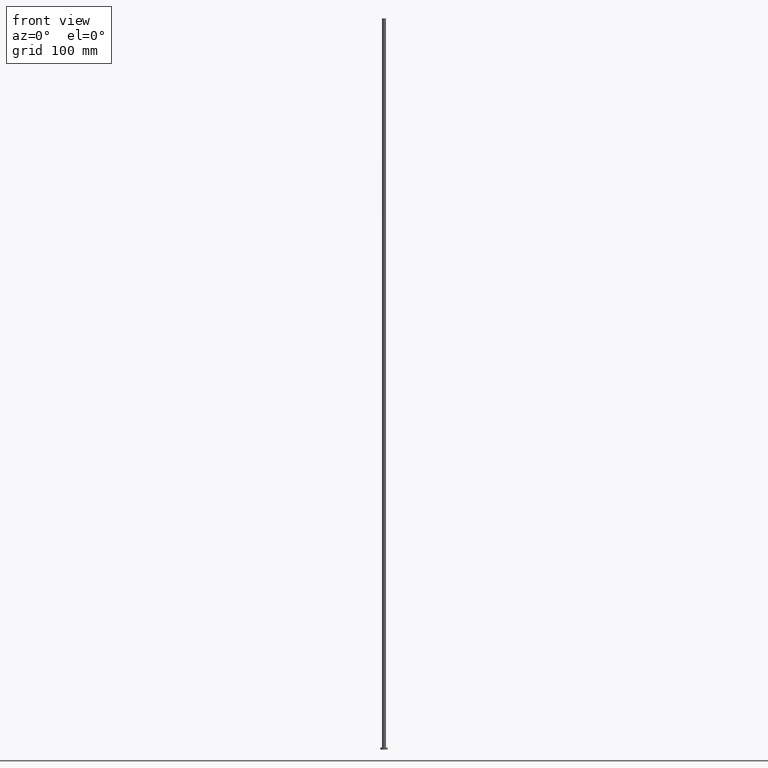
[diagram: clean part render]
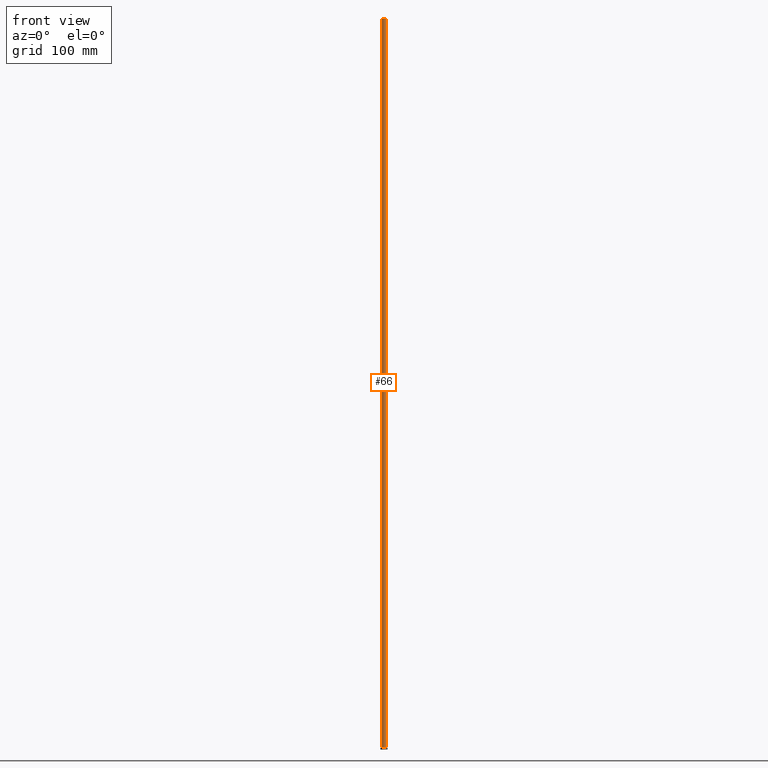
[diagram: same view with one face highlighted and labeled with its STEP entity id]
A machine part, front view. The second image highlights one B-rep face of the part: STEP entity #66.
In plain terms, the highlighted cylindrical surface (edge-blend (fillet) strip) has radius 2.75 mm, axis along (-0, -0, -1).
Its self-contained STEP definition (entity closure, byte-faithful):
#1 = ORIENTED_EDGE ( 'NONE', *, *, #4, .F. ) ;
#4 = EDGE_CURVE ( 'NONE', #95, #244, #157, .T. ) ;
#13 = AXIS2_PLACEMENT_3D ( 'NONE', #89, #241, #224 ) ;
#14 = CARTESIAN_POINT ( 'NONE',  ( -2.750000000000000000, 0.000000000000000000, 3.000000000000000000 ) ) ;
#15 = CARTESIAN_POINT ( 'NONE',  ( -2.750000000000000000, 0.000000000000000000, 1000.000000000000000 ) ) ;
#44 = AXIS2_PLACEMENT_3D ( 'NONE', #211, #130, #154 ) ;
#51 = EDGE_LOOP ( 'NONE', ( #1, #240, #134, #161 ) ) ;
#56 = VERTEX_POINT ( 'NONE', #15 ) ;
#58 = DIRECTION ( 'NONE',  ( -0.000000000000000000, -0.000000000000000000, -1.000000000000000000 ) ) ;
#66 = ADVANCED_FACE ( 'NONE', ( #121 ), #73, .T. ) ;
#73 = CYLINDRICAL_SURFACE ( 'NONE', #123, 2.750000000000000000 ) ;
#75 = DIRECTION ( 'NONE',  ( -0.000000000000000000, -0.000000000000000000, -1.000000000000000000 ) ) ;
#89 = CARTESIAN_POINT ( 'NONE',  ( 0.000000000000000000, 0.000000000000000000, 1000.000000000000000 ) ) ;
#92 = CARTESIAN_POINT ( 'NONE',  ( -2.750000000000000000, 0.000000000000000000, 1000.000000000000000 ) ) ;
#95 = VERTEX_POINT ( 'NONE', #169 ) ;
#109 = VECTOR ( 'NONE', #75, 1000.000000000000000 ) ;
#121 = FACE_OUTER_BOUND ( 'NONE', #51, .T. ) ;
#123 = AXIS2_PLACEMENT_3D ( 'NONE', #153, #228, #226 ) ;
#130 = DIRECTION ( 'NONE',  ( 0.000000000000000000, 0.000000000000000000, 1.000000000000000000 ) ) ;
#131 = EDGE_CURVE ( 'NONE', #213, #244, #152, .T. ) ;
#134 = ORIENTED_EDGE ( 'NONE', *, *, #209, .T. ) ;
#148 = CARTESIAN_POINT ( 'NONE',  ( 2.750000000000000000, 3.367778697655221012E-16, 3.000000000000000000 ) ) ;
#152 = CIRCLE ( 'NONE', #44, 2.750000000000000000 ) ;
#153 = CARTESIAN_POINT ( 'NONE',  ( 0.000000000000000000, 0.000000000000000000, 1000.000000000000000 ) ) ;
#154 = DIRECTION ( 'NONE',  ( 1.000000000000000000, 0.000000000000000000, 0.000000000000000000 ) ) ;
#157 = LINE ( 'NONE', #220, #206 ) ;
#161 = ORIENTED_EDGE ( 'NONE', *, *, #131, .T. ) ;
#169 = CARTESIAN_POINT ( 'NONE',  ( 2.750000000000000000, 3.367778697655221012E-16, 1000.000000000000000 ) ) ;
#197 = LINE ( 'NONE', #92, #109 ) ;
#206 = VECTOR ( 'NONE', #58, 1000.000000000000000 ) ;
#207 = CIRCLE ( 'NONE', #13, 2.750000000000000000 ) ;
#209 = EDGE_CURVE ( 'NONE', #56, #213, #197, .T. ) ;
#211 = CARTESIAN_POINT ( 'NONE',  ( 0.000000000000000000, 0.000000000000000000, 3.000000000000000000 ) ) ;
#213 = VERTEX_POINT ( 'NONE', #14 ) ;
#220 = CARTESIAN_POINT ( 'NONE',  ( 2.750000000000000000, 3.367778697655221012E-16, 1000.000000000000000 ) ) ;
#224 = DIRECTION ( 'NONE',  ( 1.000000000000000000, 0.000000000000000000, 0.000000000000000000 ) ) ;
#226 = DIRECTION ( 'NONE',  ( -1.000000000000000000, 0.000000000000000000, 0.000000000000000000 ) ) ;
#228 = DIRECTION ( 'NONE',  ( -0.000000000000000000, -0.000000000000000000, -1.000000000000000000 ) ) ;
#240 = ORIENTED_EDGE ( 'NONE', *, *, #253, .F. ) ;
#241 = DIRECTION ( 'NONE',  ( 0.000000000000000000, 0.000000000000000000, 1.000000000000000000 ) ) ;
#244 = VERTEX_POINT ( 'NONE', #148 ) ;
#253 = EDGE_CURVE ( 'NONE', #56, #95, #207, .T. ) ;